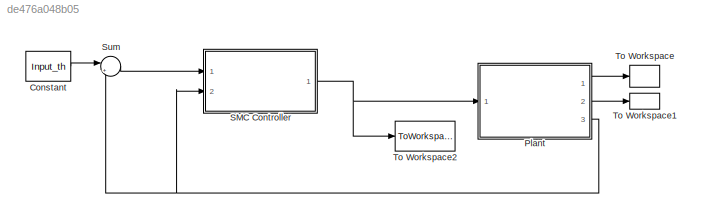
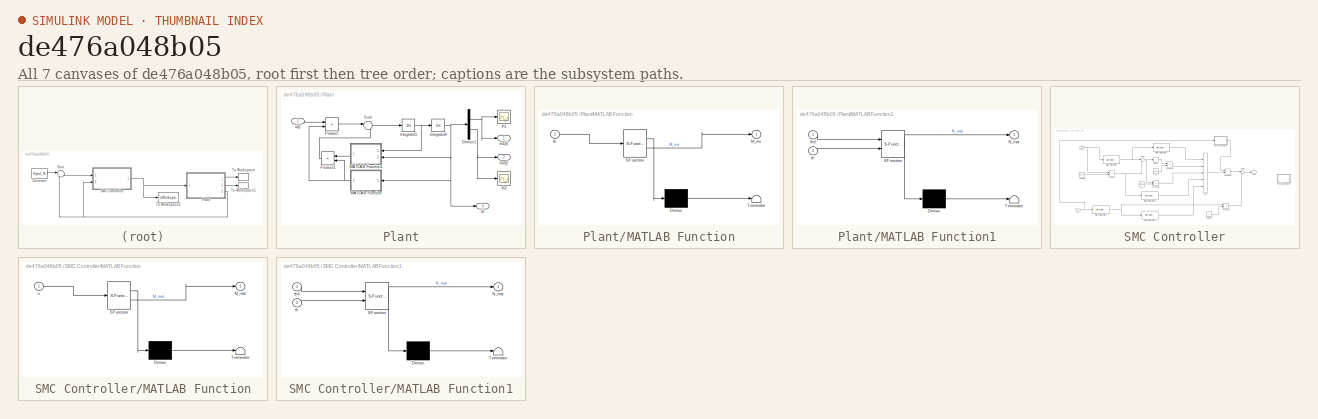
[diagram: thumbnail index - all 7 canvases of the model, root first then tree order]
MODEL slx_de476a048b05
KIND model
CONFIG AbsTol = auto
CONFIG EnableMultiTasking = off
CONFIG FixedStep = auto
CONFIG MaxStep = auto
CONFIG MinStep = auto
CONFIG RelTol = 1e-3
CONFIG SampleTimeConstraint = Unconstrained
CONFIG Solver = VariableStepAuto
CONFIG SolverName = VariableStepAuto
CONFIG StartTime = 0.0
CONFIG StopTime = stoptime
BLOCK [Constant] Constant
  Value = Input_th
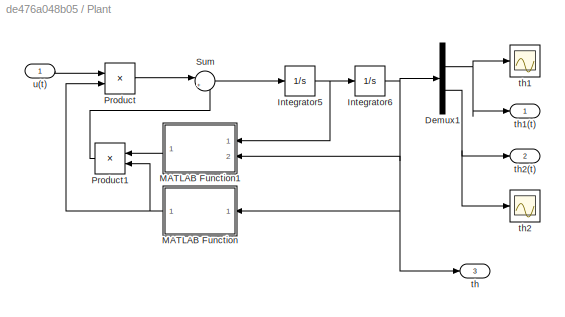
BLOCK [SubSystem] Plant
  Ports = [1, 3]
  RequestExecContextInheritance = off
BLOCK [Demux] Plant/Demux1
  Outputs = 2
  Ports = [1, 2]
BLOCK [Integrator] Plant/Integrator5
  Ports = [1, 1]
BLOCK [Integrator] Plant/Integrator6
  Ports = [1, 1]
BLOCK [SubSystem] Plant/MATLAB Function
  ErrorFcn = Stateflow.Translate.translate
  PermitHierarchicalResolution = ExplicitOnly
  Ports = [1, 1]
  RequestExecContextInheritance = off
  SFBlockType = MATLAB Function
  TreatAsAtomicUnit = on
BLOCK [Demux] Plant/MATLAB Function/ Demux 
  Outputs = 1
  Ports = [1, 1]
BLOCK [S-Function] Plant/MATLAB Function/ SFunction 
  EnableBusSupport = off
  FunctionName = sf_sfun
  PortCounts = [1 2]
  Ports = [1, 2]
  SFcnIsStateOwnerBlock = off
  SFunctionDeploymentMode = off
  Tag = Stateflow S-Function 4
BLOCK [Terminator] Plant/MATLAB Function/ Terminator 
BLOCK [Outport] Plant/MATLAB Function/M_inv
BLOCK [Inport] Plant/MATLAB Function/th
BLOCK [SubSystem] Plant/MATLAB Function1
  ErrorFcn = Stateflow.Translate.translate
  PermitHierarchicalResolution = ExplicitOnly
  Ports = [2, 1]
  RequestExecContextInheritance = off
  SFBlockType = MATLAB Function
  TreatAsAtomicUnit = on
BLOCK [Demux] Plant/MATLAB Function1/ Demux 
  Outputs = 1
  Ports = [1, 1]
BLOCK [S-Function] Plant/MATLAB Function1/ SFunction 
  EnableBusSupport = off
  FunctionName = sf_sfun
  PortCounts = [2 2]
  Ports = [2, 2]
  SFcnIsStateOwnerBlock = off
  SFunctionDeploymentMode = off
  Tag = Stateflow S-Function 5
BLOCK [Terminator] Plant/MATLAB Function1/ Terminator 
BLOCK [Outport] Plant/MATLAB Function1/N_mat
BLOCK [Inport] Plant/MATLAB Function1/th
  Port = 2
BLOCK [Inport] Plant/MATLAB Function1/thd
BLOCK [Product] Plant/Product
  Ports = [2, 1]
BLOCK [Product] Plant/Product1
  Ports = [2, 1]
BLOCK [Sum] Plant/Sum
  Inputs = |+-
  Ports = [2, 1]
BLOCK [Outport] Plant/th
  Port = 3
  VectorParamsAs1DForOutWhenUnconnected = off
BLOCK [Scope] Plant/th1
  Floating = off
  NumInputPorts = 1
  Ports = [1]
  ScopeSpecificationString = Simulink.scopes.TimeScopeBlockCfg('CurrentConfiguration', extmgr.ConfigurationSet(extmgr.Configuration('Core','General UI',true),extmgr.Configuration('Core','Source UI',true),extmgr.Configuration('Sources','WiredSimulink',true,'DataLoggingVariableName','ScopeData1','DataLoggingSaveFormat','StructureWithTime','DataLoggingLimitDataPoints',true,'DataLoggingDecimation','1','DataLoggingDecimateData',tr...<+929ch>
BLOCK [Outport] Plant/th1(t)
  VectorParamsAs1DForOutWhenUnconnected = off
BLOCK [Scope] Plant/th2
  Floating = off
  NumInputPorts = 1
  Ports = [1]
  ScopeSpecificationString = Simulink.scopes.TimeScopeBlockCfg('CurrentConfiguration', extmgr.ConfigurationSet(extmgr.Configuration('Core','General UI',true),extmgr.Configuration('Core','Source UI',true),extmgr.Configuration('Sources','WiredSimulink',true,'DataLoggingSaveFormat','StructureWithTime','DataLoggingLimitDataPoints',true,'DataLoggingDecimation','1','DataLoggingDecimateData',true),extmgr.Configuration('Visuals','Tim...<+890ch>
BLOCK [Outport] Plant/th2(t)
  Port = 2
  VectorParamsAs1DForOutWhenUnconnected = off
BLOCK [Inport] Plant/u(t)
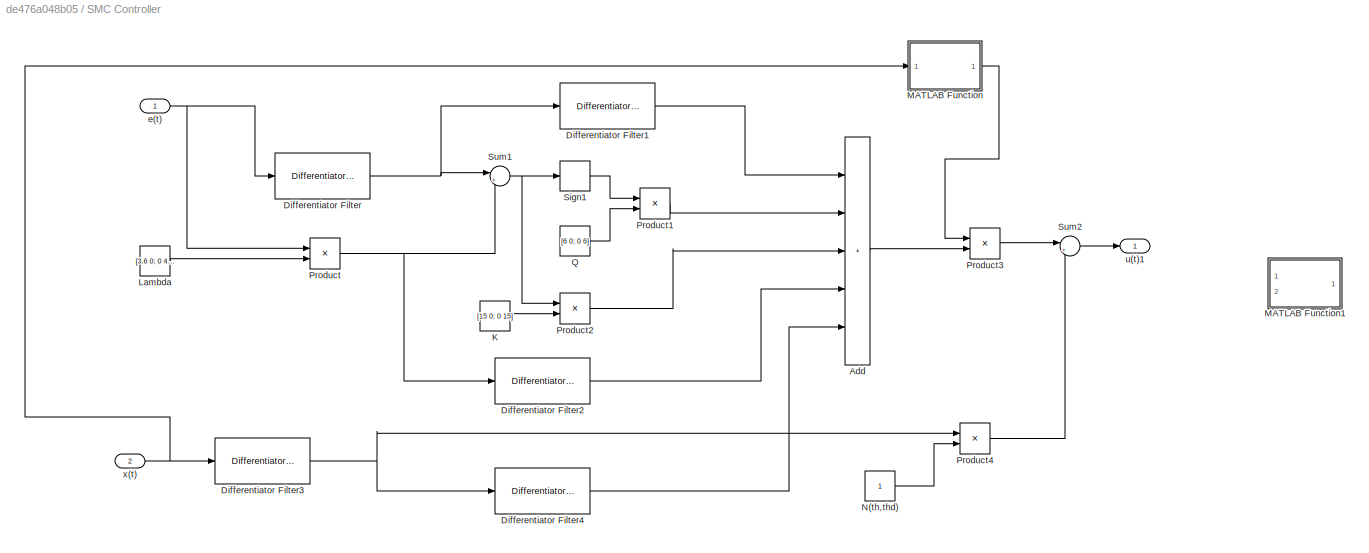
BLOCK [SubSystem] SMC Controller
  Ports = [2, 1]
  RequestExecContextInheritance = off
BLOCK [Sum] SMC Controller/Add
  IconShape = rectangular
  Inputs = +++++
  Ports = [5, 1]
BLOCK [Reference] SMC Controller/Differentiator Filter  REF=dspfdesign/Differentiator Filter
  Ports = [1, 1]
  SourceBlock = dspfdesign/Differentiator Filter
  SourceProductBaseCode = DS
  SourceType = dsp.Differentiator
BLOCK [Reference] SMC Controller/Differentiator Filter1  REF=dspfdesign/Differentiator Filter
  Ports = [1, 1]
  SourceBlock = dspfdesign/Differentiator Filter
  SourceProductBaseCode = DS
  SourceType = dsp.Differentiator
BLOCK [Reference] SMC Controller/Differentiator Filter2  REF=dspfdesign/Differentiator Filter
  Ports = [1, 1]
  SourceBlock = dspfdesign/Differentiator Filter
  SourceProductBaseCode = DS
  SourceType = dsp.Differentiator
BLOCK [Reference] SMC Controller/Differentiator Filter3  REF=dspfdesign/Differentiator Filter
  Ports = [1, 1]
  SourceBlock = dspfdesign/Differentiator Filter
  SourceProductBaseCode = DS
  SourceType = dsp.Differentiator
BLOCK [Reference] SMC Controller/Differentiator Filter4  REF=dspfdesign/Differentiator Filter
  Ports = [1, 1]
  SourceBlock = dspfdesign/Differentiator Filter
  SourceProductBaseCode = DS
  SourceType = dsp.Differentiator
BLOCK [Constant] SMC Controller/K
  Value = [15 0; 0 15]
  VectorParams1D = off
BLOCK [Constant] SMC Controller/Lambda
  Value = [3.6 0; 0 4.5]
  VectorParams1D = off
BLOCK [SubSystem] SMC Controller/MATLAB Function
  ErrorFcn = Stateflow.Translate.translate
  PermitHierarchicalResolution = ExplicitOnly
  Ports = [1, 1]
  RequestExecContextInheritance = off
  SFBlockType = MATLAB Function
  TreatAsAtomicUnit = on
BLOCK [Demux] SMC Controller/MATLAB Function/ Demux 
  Outputs = 1
  Ports = [1, 1]
BLOCK [S-Function] SMC Controller/MATLAB Function/ SFunction 
  EnableBusSupport = off
  FunctionName = sf_sfun
  PortCounts = [1 2]
  Ports = [1, 2]
  SFcnIsStateOwnerBlock = off
  SFunctionDeploymentMode = off
  Tag = Stateflow S-Function 3
BLOCK [Terminator] SMC Controller/MATLAB Function/ Terminator 
BLOCK [Outport] SMC Controller/MATLAB Function/M_mat
BLOCK [Inport] SMC Controller/MATLAB Function/u
BLOCK [SubSystem] SMC Controller/MATLAB Function1
  ErrorFcn = Stateflow.Translate.translate
  PermitHierarchicalResolution = ExplicitOnly
  Ports = [2, 1]
  RequestExecContextInheritance = off
  SFBlockType = MATLAB Function
  TreatAsAtomicUnit = on
BLOCK [Demux] SMC Controller/MATLAB Function1/ Demux 
  Outputs = 1
  Ports = [1, 1]
BLOCK [S-Function] SMC Controller/MATLAB Function1/ SFunction 
  EnableBusSupport = off
  FunctionName = sf_sfun
  PortCounts = [2 2]
  Ports = [2, 2]
  SFcnIsStateOwnerBlock = off
  SFunctionDeploymentMode = off
  Tag = Stateflow S-Function 2
BLOCK [Terminator] SMC Controller/MATLAB Function1/ Terminator 
BLOCK [Outport] SMC Controller/MATLAB Function1/N_mat
BLOCK [Inport] SMC Controller/MATLAB Function1/th
  Port = 2
BLOCK [Inport] SMC Controller/MATLAB Function1/thd
BLOCK [Constant] SMC Controller/N(th,thd)
BLOCK [Product] SMC Controller/Product
  Ports = [2, 1]
BLOCK [Product] SMC Controller/Product1
  Ports = [2, 1]
BLOCK [Product] SMC Controller/Product2
  Ports = [2, 1]
BLOCK [Product] SMC Controller/Product3
  Ports = [2, 1]
BLOCK [Product] SMC Controller/Product4
  Ports = [2, 1]
BLOCK [Constant] SMC Controller/Q
  Value = [6 0; 0 6]
  VectorParams1D = off
BLOCK [Signum] SMC Controller/Sign1
  ZeroCross = off
BLOCK [Sum] SMC Controller/Sum1
  Inputs = |++
  Ports = [2, 1]
BLOCK [Sum] SMC Controller/Sum2
  Inputs = |++
  Ports = [2, 1]
BLOCK [Inport] SMC Controller/e(t)
BLOCK [Outport] SMC Controller/u(t)1
  VectorParamsAs1DForOutWhenUnconnected = off
BLOCK [Inport] SMC Controller/x(t)
  Port = 2
BLOCK [Sum] Sum
  Inputs = |+-
  Ports = [2, 1]
BLOCK [ToWorkspace] To Workspace
  FixptAsFi = on
  MaxDataPoints = inf
  Ports = [1]
  SampleTime = -1
  SaveFormat = Timeseries
  VariableName = x1
BLOCK [ToWorkspace] To Workspace1
  FixptAsFi = on
  MaxDataPoints = inf
  Ports = [1]
  SampleTime = -1
  SaveFormat = Timeseries
  VariableName = x2
BLOCK [ToWorkspace] To Workspace2
  FixptAsFi = on
  MaxDataPoints = inf
  Ports = [1]
  SampleTime = -1
  SaveFormat = Timeseries
  VariableName = u
LINE Constant:1 -> Sum:1
NET Plant/Demux1:1 -> Plant/th1(t):1, Plant/th1:1
NET Plant/Demux1:2 -> Plant/th2(t):1, Plant/th2:1
NET Plant/Integrator5:1 -> Plant/Integrator6:1, Plant/MATLAB Function1:1
NET Plant/Integrator6:1 -> Plant/Demux1:1, Plant/MATLAB Function1:2, Plant/MATLAB Function:1, Plant/th:1
LINE Plant/MATLAB Function1:1 -> Plant/Product1:1
NET Plant/MATLAB Function:1 -> Plant/Product1:2, Plant/Product:2
LINE Plant/Product1:1 -> Plant/Sum:2
LINE Plant/Product:1 -> Plant/Sum:1
LINE Plant/Sum:1 -> Plant/Integrator5:1
LINE Plant/u(t):1 -> Plant/Product:1
LINE Plant:1 -> To Workspace:1
LINE Plant:2 -> To Workspace1:1
NET Plant:3 -> SMC Controller:2, Sum:2
LINE SMC Controller/Add:1 -> SMC Controller/Product3:2
LINE SMC Controller/Differentiator Filter1:1 -> SMC Controller/Add:1
LINE SMC Controller/Differentiator Filter2:1 -> SMC Controller/Add:4
NET SMC Controller/Differentiator Filter3:1 -> SMC Controller/Differentiator Filter4:1, SMC Controller/Product4:1
LINE SMC Controller/Differentiator Filter4:1 -> SMC Controller/Add:5
NET SMC Controller/Differentiator Filter:1 -> SMC Controller/Differentiator Filter1:1, SMC Controller/Sum1:1
LINE SMC Controller/K:1 -> SMC Controller/Product2:2
LINE SMC Controller/Lambda:1 -> SMC Controller/Product:2
LINE SMC Controller/MATLAB Function:1 -> SMC Controller/Product3:1
LINE SMC Controller/N(th,thd):1 -> SMC Controller/Product4:2
LINE SMC Controller/Product1:1 -> SMC Controller/Add:2
LINE SMC Controller/Product2:1 -> SMC Controller/Add:3
LINE SMC Controller/Product3:1 -> SMC Controller/Sum2:1
LINE SMC Controller/Product4:1 -> SMC Controller/Sum2:2
NET SMC Controller/Product:1 -> SMC Controller/Differentiator Filter2:1, SMC Controller/Sum1:2
LINE SMC Controller/Q:1 -> SMC Controller/Product1:2
LINE SMC Controller/Sign1:1 -> SMC Controller/Product1:1
NET SMC Controller/Sum1:1 -> SMC Controller/Product2:1, SMC Controller/Sign1:1
LINE SMC Controller/Sum2:1 -> SMC Controller/u(t)1:1
NET SMC Controller/e(t):1 -> SMC Controller/Differentiator Filter:1, SMC Controller/Product:1
NET SMC Controller/x(t):1 -> SMC Controller/Differentiator Filter3:1, SMC Controller/MATLAB Function:1
NET SMC Controller:1 -> Plant:1, To Workspace2:1
LINE Sum:1 -> SMC Controller:1
note: NET lines group one-source signal fan-out (src -> all destinations, sorted); 1:1 wires keep LINE
CHART SMC Controller/MATLAB Function states=1 transitions=1
  STATE_LABEL 'eML_blk_kernel()'
  STATE_LABEL 'SCRIPT:\nfunction M_mat = Mass_mat(u)\nm1 = 20;\nm2 = 10;\nL1 = 0.5;\nL2 = 0.5;\na1 = 0.5;\na2 = 0.5;\nI1 = 0.8;\nI2 = 0.2;\nth2 = u(2);\nM11 = I1 + m1*L1*L1 + I2 + m2*(a1*a1 + L2*L2 + 2*a1 * L2 * cos(th2));\nM12 = I2 + m2 * (L2 * L2 + a1 * L2 * cos(th2));\nM21 = M12;\nM22 = I2 + m2*L2*L2;\nM_mat = [M11 M12; M21 M22];\n\n\n\n'
CHART Plant/MATLAB Function states=1 transitions=1
  STATE_LABEL 'eML_blk_kernel()'
  STATE_LABEL 'SCRIPT:\nfunction M_inv = Mass_mat(th)\nth2 = th(2);\nm1 = 20;\nm2 = 10;\nL1 = 0.5;\nL2 = 0.5;\na1 = 0.5;\na2 = 0.5;\nI1 = 0.8;\nI2 = 0.2;\nM11 = I1 + m1*L1*L1 + I2 + m2*(a1*a1 + L2*L2 + 2*a1 * L2 * cos(th2));\nM12 = I2 + m2 * (L2 * L2 + a1 * L2 * cos(th2));\nM21 = M12;\nM22 = I2 + m2*L2*L2;\nM_mat = [M11 M12; M21 M22];\nM_inv = inv(M_mat);\n\n'
CHART Plant/MATLAB Function1 states=1 transitions=1
  STATE_LABEL 'eML_blk_kernel()'
  STATE_LABEL 'SCRIPT:\nfunction N_mat= N_func(thd, th)\nth1 = th(1);\nth2 = th(2);\nth1d = thd(1);\nth2d = thd(2);\nm1 = 20;\nm2 = 10;\nL1 = 0.5;\nL2 = 0.5;\na1 = 0.5;\na2 = 0.5;\nN11 = -m2 * a2 * L2 * th1d * sin(th2);\nN12 = -m2* a1 * L2*(th1d + th2d)*sin(th2);\nN21 = m2*a1*th1d*sin(th2);\nN_mat = [(N11*th1d)+(N12*th2d) N21*(th1d)];\n\n'
CHART SMC Controller/MATLAB Function1 states=1 transitions=1
  STATE_LABEL 'eML_blk_kernel()'
  STATE_LABEL 'SCRIPT:\nfunction N_mat= N_func(thd, th)\nth1 = th(1);\nth2 = th(2);\nth1d = thd(1);\nth2d = thd(2);\nm1 = 20;\nm2 = 10;\nL1 = 0.5;\nL2 = 0.5;\na1 = 0.5;\na2 = 0.5;\nN11 = -m2 * a2 * L2 * th1d * sin(th2);\nN12 = -m2* a1 * L2*(th1d + th2d)*sin(th2);\nN21 = m2*a1*th1d*sin(th2);\nN_mat = [(N11*th1d)+(N12*th2d) N21*(th1d)];\n\n'
CHART  states=0 transitions=0
CHART  states=0 transitions=0
CHART  states=0 transitions=0
CHART  states=0 transitions=0
